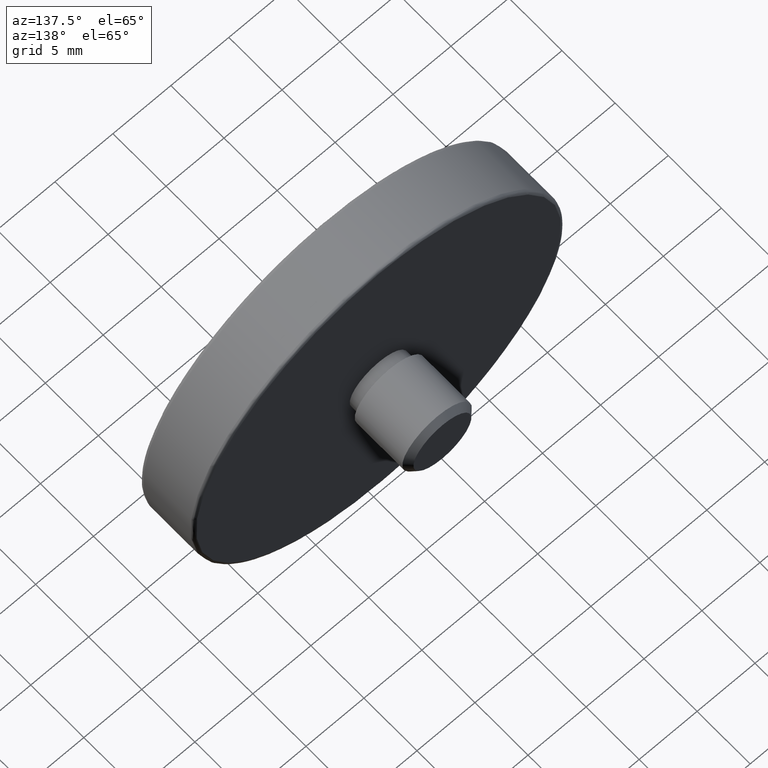
[diagram: clean part render]
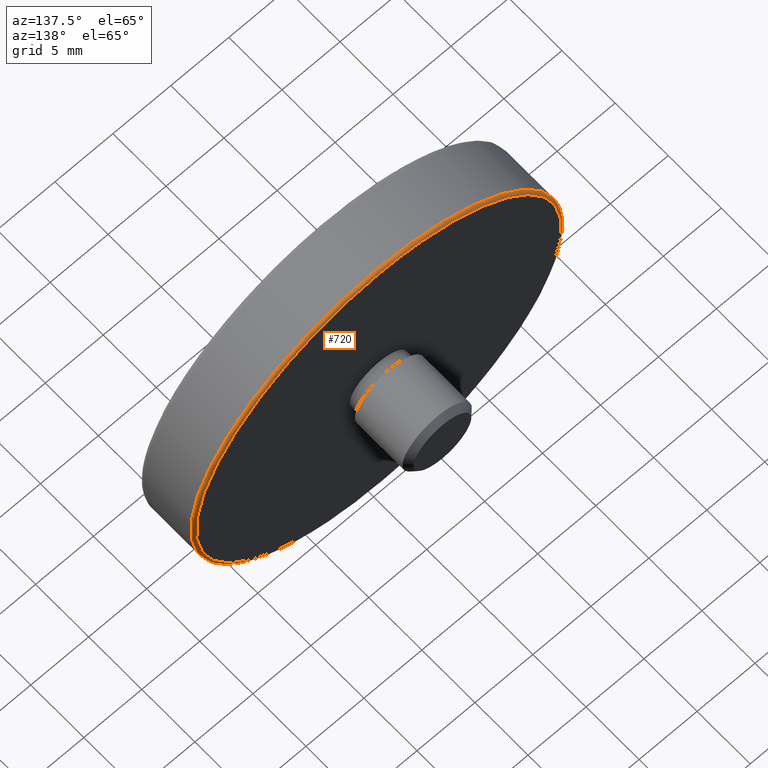
[diagram: same view with one face highlighted and labeled with its STEP entity id]
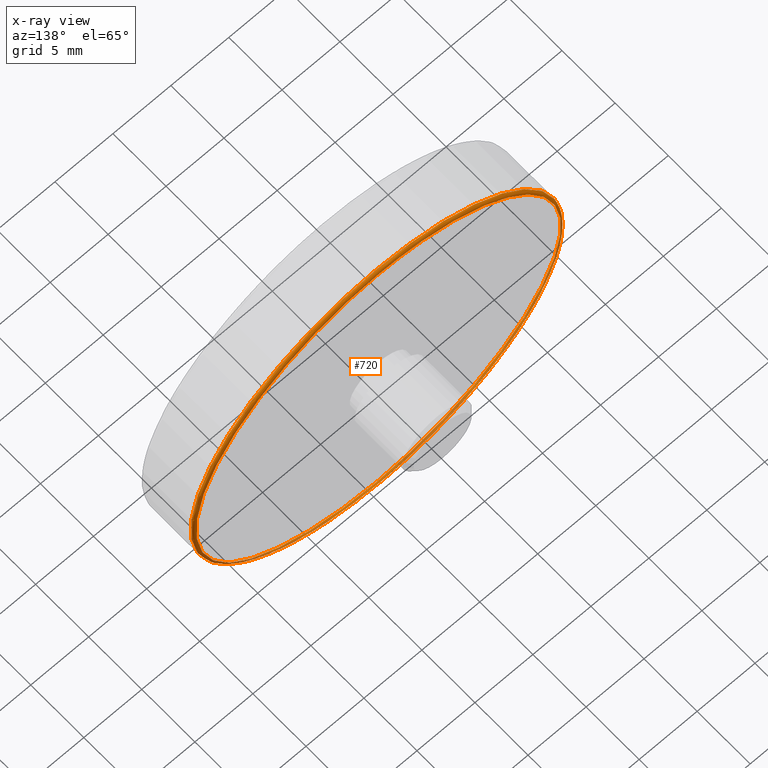
[diagram: x-ray of the same camera — body ghosted, the highlighted face saturated]
A machine part, auxiliary view. The second image highlights one B-rep face of the part: STEP entity #720.
The next image is the same camera in x-ray: the body ghosted, the highlighted face saturated — about 6% of this face is hidden behind the body in this view.
In plain terms, the highlighted face is a freeform B-spline surface patch.
Its self-contained STEP definition (entity closure, byte-faithful):
#3 = CARTESIAN_POINT ( 'NONE',  ( -16.29786958882685965, -0.1515747368784573501, 33.20085979788085240 ) ) ;
#10 = CARTESIAN_POINT ( 'NONE',  ( -15.88425312384651455, -0.1515747368784573779, 28.26087965032803950 ) ) ;
#18 = CARTESIAN_POINT ( 'NONE',  ( -0.5807087718688666023, -0.4015747368784575722, 48.00000000000000000 ) ) ;
#20 = CARTESIAN_POINT ( 'NONE',  ( 5.711497757343182435, -0.1515747368784573501, 46.44833140222376500 ) ) ;
#22 = CARTESIAN_POINT ( 'NONE',  ( -6.407872911795321258, -0.1515747368784573501, 46.63241755846218695 ) ) ;
#25 = CARTESIAN_POINT ( 'NONE',  ( 14.81345422788012023, -0.1515747368784573224, 28.63198645309650914 ) ) ;
#32 = CARTESIAN_POINT ( 'NONE',  ( 7.592518070013650977, -0.1515747368784573501, 18.52615408060659163 ) ) ;
#34 = CARTESIAN_POINT ( 'NONE',  ( -9.425465962561231592, -0.1515747368784573501, 45.03218259800112122 ) ) ;
#37 = CARTESIAN_POINT ( 'NONE',  ( 14.08687253529806149, -0.1515747368784573501, 26.26192165741480622 ) ) ;
#43 = CARTESIAN_POINT ( 'NONE',  ( 10.94053227989872390, -0.1515747368784573501, 42.75264883305106167 ) ) ;
#51 = CARTESIAN_POINT ( 'NONE',  ( 12.85166006208239864, -0.1515747368784573501, 23.77406444865714619 ) ) ;
#56 = CARTESIAN_POINT ( 'NONE',  ( 1.338122383156307160, -0.1515747368784573224, 16.33764681581298817 ) ) ;
#66 = CARTESIAN_POINT ( 'NONE',  ( 5.647213716715763887, -0.1515747368784573501, 17.53253501503873224 ) ) ;
#71 = EDGE_LOOP ( 'NONE', ( #216 ) ) ;
#72 = CARTESIAN_POINT ( 'NONE',  ( -32.58070877186887060, -0.4015747368784576277, 16.00000000000000000 ) ) ;
#75 = CARTESIAN_POINT ( 'NONE',  ( -16.33072498494765057, -0.1515747368784573501, 32.48149716482537741 ) ) ;
#82 = CARTESIAN_POINT ( 'NONE',  ( -14.69947861443043813, -0.1515747368784573501, 39.01587541199283038 ) ) ;
#91 = CARTESIAN_POINT ( 'NONE',  ( -6.169976929085363437, -0.1515747368784573779, 17.27485565886705743 ) ) ;
#98 = CARTESIAN_POINT ( 'NONE',  ( -16.08925596035417271, -0.1515747368784573501, 34.74742831985744118 ) ) ;
#104 = CARTESIAN_POINT ( 'NONE',  ( -5.540876728636449755, -0.1515747368784573501, 17.04753393455617072 ) ) ;
#120 = CARTESIAN_POINT ( 'NONE',  ( 13.09090499631559368, -0.1515747368784573501, 24.17205017078983431 ) ) ;
#121 = CARTESIAN_POINT ( 'NONE',  ( -11.33335760492642486, -0.1515747368784573224, 43.52124105176368829 ) ) ;
#124 = CARTESIAN_POINT ( 'NONE',  ( 7.926243360273033112, -0.1515747368784573501, 45.25513823212828157 ) ) ;
#127 = CARTESIAN_POINT ( 'NONE',  ( -9.254928234427744371, -0.1515747368784573779, 45.14628347448076084 ) ) ;
#133 = CARTESIAN_POINT ( 'NONE',  ( -7.233626088653621444, -0.1515747368784573501, 46.28035489036624739 ) ) ;
#135 = CARTESIAN_POINT ( 'NONE',  ( 31.21218444694459038, -0.1515747368784575722, 47.89644660940672338 ) ) ;
#136 = CARTESIAN_POINT ( 'NONE',  ( 14.97826097242841570, -0.1515747368784573501, 29.54908513145952043 ) ) ;
#141 = CARTESIAN_POINT ( 'NONE',  ( -0.5807087718688667133, -0.2551281274717313030, 48.00000000000000000 ) ) ;
#142 = CARTESIAN_POINT ( 'NONE',  ( 14.86436753226903207, -0.1515747368784573501, 35.08535364242619181 ) ) ;
#149 = CARTESIAN_POINT ( 'NONE',  ( 4.019507202574800431, -0.1515747368784573501, 16.92152340032683355 ) ) ;
#156 = B_SPLINE_CURVE_WITH_KNOTS ( 'NONE', 3,
 ( #294, #869, #681, #787, #286, #194, #399, #1255, #973, #199, #1174, #693, #206, #590, #986, #497, #891, #20, #181, #564, #960, #470, #124, #225, #317, #312, #43, #503, #519, #807, #614, #1014, #328, #1008, #1204, #824, #413, #235, #1191, #507, #432, #915, #620, #718, #706, #142, #1096, #905, #417, #214, #1188, #1001, #1086, #1209, #136, #605, #1110, #525, #596, #25, #322, #334, #513, #992, #910, #37, #423, #921, #813, #120, #51, #896, #405, #1104, #801, #1198, #700, #713, #1091, #818, #219, #601, #231, #32, #997, #257, #66, #743, #437, #747, #633, #454, #149, #842, #351, #643, #449, #532, #1027, #56, #1037, #932 ),
 .UNSPECIFIED., .F., .F.,
 ( 4, 1, 1, 1, 1, 2, 2, 1, 1, 1, 1, 2, 2, 1, 1, 1, 2, 2, 2, 1, 1, 1, 2, 2, 1, 1, 1, 1, 2, 2, 1, 1, 1, 1, 2, 2, 2, 1, 1, 1, 1, 2, 2, 1, 1, 1, 1, 2, 2, 1, 1, 1, 2, 2, 2, 1, 1, 1, 2, 2, 1, 1, 1, 1, 2, 2, 1, 1, 1, 1, 2, 2, 4 ),
 ( 0.000000000000000000, 0.03125000000000648787, 0.04687500000000970057, 0.05468750000001134509, 0.05859375000001212919, 0.06054687500001255246, 0.06250000000001296185, 0.09375000000001895706, 0.1093750000000219130, 0.1171875000000233286, 0.1210937500000240641, 0.1230468750000243694, 0.1250000000000246747, 0.1562500000000294487, 0.1718750000000318634, 0.1796875000000329736, 0.1835937500000335287, 0.1875000000000340838, 0.2500000000000414113, 0.2812500000000449640, 0.2968750000000465183, 0.3046875000000474065, 0.3085937500000477396, 0.3125000000000481282, 0.3437500000000509592, 0.3593750000000523470, 0.3671875000000532352, 0.3710937500000537348, 0.3730468750000537903, 0.3750000000000538458, 0.4062500000000502931, 0.4218750000000487388, 0.4296875000000477396, 0.4335937500000472400, 0.4355468750000471845, 0.4375000000000471290, 0.5000000000000426326, 0.5312500000000403011, 0.5468750000000393019, 0.5546875000000386358, 0.5585937500000383027, 0.5605468750000380806, 0.5625000000000379696, 0.5937500000000349720, 0.6093750000000336398, 0.6171875000000328626, 0.6210937500000325295, 0.6230468750000324185, 0.6250000000000323075, 0.6562500000000297540, 0.6718750000000284217, 0.6796875000000278666, 0.6835937500000275335, 0.6875000000000273115, 0.7500000000000213163, 0.7812500000000184297, 0.7968750000000168754, 0.8046875000000162093, 0.8085937500000158762, 0.8125000000000155431, 0.8437500000000129896, 0.8593750000000117684, 0.8671875000000112133, 0.8710937500000108802, 0.8730468750000107692, 0.8750000000000105471, 0.9062500000000076605, 0.9218750000000061062, 0.9296875000000054401, 0.9335937500000051070, 0.9355468750000048850, 0.9375000000000047740, 1.000000000000000000 ),
 .UNSPECIFIED. ) ;
#177 = CARTESIAN_POINT ( 'NONE',  ( -15.30585311300143658, -0.1515747368784573501, 37.58926815722257686 ) ) ;
#181 = CARTESIAN_POINT ( 'NONE',  ( 6.435166640079661882, -0.1515747368784573501, 46.11876984258670831 ) ) ;
#184 = CARTESIAN_POINT ( 'NONE',  ( -3.387404014291587551, -0.1515747368784573501, 16.50207018805590309 ) ) ;
#191 = CARTESIAN_POINT ( 'NONE',  ( -15.79983763065334657, -0.1515747368784573779, 36.11103185049523745 ) ) ;
#194 = CARTESIAN_POINT ( 'NONE',  ( 2.077848755630798294, -0.1515747368784573501, 47.52420673816928343 ) ) ;
#196 = CARTESIAN_POINT ( 'NONE',  ( -6.259294680629857943, -0.1515747368784573501, 17.30928195014747573 ) ) ;
#199 = CARTESIAN_POINT ( 'NONE',  ( 2.787304775032338089, -0.1515747368784573501, 47.39416299974892155 ) ) ;
#203 = CARTESIAN_POINT ( 'NONE',  ( -6.808631260446168731, -0.1515747368784573501, 46.46746498496457178 ) ) ;
#206 = CARTESIAN_POINT ( 'NONE',  ( 4.799597592749263342, -0.1515747368784573501, 46.80352059488469507 ) ) ;
#207 = CIRCLE ( 'NONE', #878, 16.00000000000000000 ) ;
#214 = CARTESIAN_POINT ( 'NONE',  ( 15.08161196238072854, -0.1515747368784573501, 33.91900647747993247 ) ) ;
#216 = ORIENTED_EDGE ( 'NONE', *, *, #329, .T. ) ;
#219 = CARTESIAN_POINT ( 'NONE',  ( 8.264048418824959441, -0.1515747368784573501, 18.96781740200073685 ) ) ;
#221 = CARTESIAN_POINT ( 'NONE',  ( -3.509403794939695231, -0.1515747368784573501, 47.47534259242056720 ) ) ;
#223 = CARTESIAN_POINT ( 'NONE',  ( -32.08070877186887060, -0.1515747368784575722, 16.25000000000000355 ) ) ;
#225 = CARTESIAN_POINT ( 'NONE',  ( 7.980982636514255546, -0.1515747368784573501, 45.21985185055384449 ) ) ;
#227 = CARTESIAN_POINT ( 'NONE',  ( -8.067307790757471508, -0.1515747368784573501, 45.87490668768065660 ) ) ;
#231 = CARTESIAN_POINT ( 'NONE',  ( 8.093510690688813014, -0.1515747368784573501, 18.85371652551869914 ) ) ;
#234 = CARTESIAN_POINT ( 'NONE',  ( -0.5807087718688667133, -0.2551281274717313030, 16.00000000000000000 ) ) ;
#235 = CARTESIAN_POINT ( 'NONE',  ( 13.97640775870714513, -0.1515747368784573501, 38.01338658018740801 ) ) ;
#244 = CARTESIAN_POINT ( 'NONE',  ( -0.5807087718688666023, -0.4015747368784575722, 16.00000000000000000 ) ) ;
#257 = CARTESIAN_POINT ( 'NONE',  ( 6.072208544928450635, -0.1515747368784573501, 17.71964510963943695 ) ) ;
#269 = CARTESIAN_POINT ( 'NONE',  ( -16.06229141250205217, -0.1515747368784573501, 29.10449093707055823 ) ) ;
#274 = CARTESIAN_POINT ( 'NONE',  ( -13.22361034289799520, -0.1515747368784573779, 22.60039558309022922 ) ) ;
#281 = CARTESIAN_POINT ( 'NONE',  ( -16.24302950612161212, -0.1515747368784573501, 30.08099352252978420 ) ) ;
#286 = CARTESIAN_POINT ( 'NONE',  ( 1.870273188304122369, -0.1515747368784573501, 47.55895733115763591 ) ) ;
#290 = CARTESIAN_POINT ( 'NONE',  ( -15.27142682172116572, -0.1515747368784573779, 37.67858590876457470 ) ) ;
#294 = CARTESIAN_POINT ( 'NONE',  ( -0.5807087718688666023, -0.1515747368784573501, 47.75000000000000000 ) ) ;
#297 = CARTESIAN_POINT ( 'NONE',  ( -16.33067634571131777, -0.1515747368784573501, 31.03700567034920610 ) ) ;
#302 = CARTESIAN_POINT ( 'NONE',  ( -13.80056062242290515, -0.1515747368784573779, 40.56169140838325404 ) ) ;
#304 = CARTESIAN_POINT ( 'NONE',  ( 31.41929122813112940, -0.4015747368784576277, 16.00000000000000000 ) ) ;
#312 = CARTESIAN_POINT ( 'NONE',  ( 9.787604535660326732, -0.1515747368784573501, 43.90549774496227542 ) ) ;
#316 = CARTESIAN_POINT ( 'NONE',  ( -32.37360199068232447, -0.1515747368784575722, 47.89644660940672338 ) ) ;
#317 = CARTESIAN_POINT ( 'NONE',  ( 8.947640162873140568, -0.1515747368784573779, 44.58791851993244393 ) ) ;
#319 = CARTESIAN_POINT ( 'NONE',  ( -10.73034810346947410, -0.1515747368784573501, 44.06519142507109166 ) ) ;
#322 = CARTESIAN_POINT ( 'NONE',  ( 14.63842008691759489, -0.1515747368784573501, 27.88896814952379444 ) ) ;
#324 = CARTESIAN_POINT ( 'NONE',  ( -9.312779566459157721, -0.1515747368784573501, 45.10793897326630031 ) ) ;
#326 = ORIENTED_EDGE ( 'NONE', *, *, #478, .F. ) ;
#327 = CARTESIAN_POINT ( 'NONE',  ( 31.41929122813113651, -0.2551281274717313585, 48.00000000000000000 ) ) ;
#328 = CARTESIAN_POINT ( 'NONE',  ( 12.56557470261239473, -0.1515747368784573501, 40.67421946255804954 ) ) ;
#329 = EDGE_CURVE ( 'NONE', #1047, #1047, #207, .T. ) ;
#334 = CARTESIAN_POINT ( 'NONE',  ( 14.37175729357525000, -0.1515747368784573779, 27.03983204322719303 ) ) ;
#351 = CARTESIAN_POINT ( 'NONE',  ( 2.723323771902244506, -0.1515747368784573779, 16.59950397876811934 ) ) ;
#360 = CARTESIAN_POINT ( 'NONE',  ( -15.04817375683896152, -0.1515747368784573779, 25.77207751143215830 ) ) ;
#370 = CARTESIAN_POINT ( 'NONE',  ( -16.20199879080944427, -0.1515747368784573779, 34.03507075329260090 ) ) ;
#375 = CARTESIAN_POINT ( 'NONE',  ( -10.94902207939079020, -0.1515747368784573501, 20.09450225503043086 ) ) ;
#381 = CARTESIAN_POINT ( 'NONE',  ( -15.21312633033104156, -0.1515747368784574056, 26.17283586007314256 ) ) ;
#389 = CARTESIAN_POINT ( 'NONE',  ( -6.318787114453574993, -0.1515747368784573779, 17.33241869283310166 ) ) ;
#396 = CARTESIAN_POINT ( 'NONE',  ( -6.594095352053567005, -0.1515747368784573779, 46.55711653057763755 ) ) ;
#399 = CARTESIAN_POINT ( 'NONE',  ( 2.166740599698818492, -0.1515747368784573501, 47.50854329354646666 ) ) ;
#405 = CARTESIAN_POINT ( 'NONE',  ( 12.67442946025821549, -0.1515747368784573501, 23.49304786785566890 ) ) ;
#413 = CARTESIAN_POINT ( 'NONE',  ( 13.88675621309268315, -0.1515747368784573501, 38.22792248858236519 ) ) ;
#417 = CARTESIAN_POINT ( 'NONE',  ( 14.90087386876441222, -0.1515747368784573501, 34.89550906292913623 ) ) ;
#423 = CARTESIAN_POINT ( 'NONE',  ( 14.07569661608407507, -0.1515747368784573779, 26.23342800275192133 ) ) ;
#432 = CARTESIAN_POINT ( 'NONE',  ( 14.05170878659341582, -0.1515747368784573779, 37.82716413992604743 ) ) ;
#437 = CARTESIAN_POINT ( 'NONE',  ( 5.340297027373680727, -0.1515747368784573779, 17.40529784309341466 ) ) ;
#449 = CARTESIAN_POINT ( 'NONE',  ( 2.410682127469982561, -0.1515747368784573501, 16.53665262141501913 ) ) ;
#454 = CARTESIAN_POINT ( 'NONE',  ( 4.742023474506457781, -0.1515747368784573501, 17.16786332593163067 ) ) ;
#457 = CARTESIAN_POINT ( 'NONE',  ( -15.20028213196471434, -0.1515747368784574334, 26.14067845921419320 ) ) ;
#465 = CARTESIAN_POINT ( 'NONE',  ( -14.25232254004105314, -0.1515747368784573501, 39.82794982923019944 ) ) ;
#470 = CARTESIAN_POINT ( 'NONE',  ( 7.814066770421368879, -0.1515747368784573501, 45.32647809848867837 ) ) ;
#473 = CARTESIAN_POINT ( 'NONE',  ( -9.142400180250556119, -0.1515747368784573501, 18.78014814944473088 ) ) ;
#478 = EDGE_CURVE ( 'NONE', #1051, #1017, #156, .T. ) ;
#480 = CARTESIAN_POINT ( 'NONE',  ( -15.53317483731150261, -0.1515747368784573779, 36.96016795678708888 ) ) ;
#486 = CARTESIAN_POINT ( 'NONE',  ( -3.948722318768390860, -0.1515747368784573501, 16.60583700025124188 ) ) ;
#497 = CARTESIAN_POINT ( 'NONE',  ( 5.157369570716050511, -0.1515747368784574056, 46.66758130716693387 ) ) ;
#500 = CARTESIAN_POINT ( 'NONE',  ( -3.666062414292339255, -0.1515747368784573501, 47.44507630413845334 ) ) ;
#502 = CARTESIAN_POINT ( 'NONE',  ( -0.5807087718688667133, -0.1515747368784575444, 16.10355339059327306 ) ) ;
#503 = CARTESIAN_POINT ( 'NONE',  ( 11.48448265320902983, -0.1515747368784573779, 42.14963933158922060 ) ) ;
#507 = CARTESIAN_POINT ( 'NONE',  ( 14.03886458822561423, -0.1515747368784574334, 37.85932154078817291 ) ) ;
#510 = CARTESIAN_POINT ( 'NONE',  ( -4.319829121549474849, -0.1515747368784573501, 47.30354435197713059 ) ) ;
#513 = CARTESIAN_POINT ( 'NONE',  ( 14.22281182301589553, -0.1515747368784573501, 26.61969363538011635 ) ) ;
#518 = CARTESIAN_POINT ( 'NONE',  ( -0.5807087718688667133, -0.2551281274717313030, 48.00000000000000000 ) ) ;
#519 = CARTESIAN_POINT ( 'NONE',  ( 12.06219279915548448, -0.1515747368784573224, 41.39960441691453497 ) ) ;
#521 = CARTESIAN_POINT ( 'NONE',  ( -0.5807087718688666023, -0.1515747368784573501, 47.75000000000000000 ) ) ;
#525 = CARTESIAN_POINT ( 'NONE',  ( 14.91722303504411506, -0.1515747368784573501, 29.19331554016136465 ) ) ;
#532 = CARTESIAN_POINT ( 'NONE',  ( 2.347986251202823560, -0.1515747368784573501, 16.52465740757973123 ) ) ;
#554 = CARTESIAN_POINT ( 'NONE',  ( -16.13967851616494897, -0.1515747368784573501, 34.45091486854357754 ) ) ;
#560 = CARTESIAN_POINT ( 'NONE',  ( -15.24829007903565525, -0.1515747368784573501, 37.73807834258654026 ) ) ;
#564 = CARTESIAN_POINT ( 'NONE',  ( 7.247241057328100311, -0.1515747368784573779, 45.67161376819102969 ) ) ;
#567 = CARTESIAN_POINT ( 'NONE',  ( -8.975484314164495103, -0.1515747368784573501, 18.67352190151307312 ) ) ;
#575 = CARTESIAN_POINT ( 'NONE',  ( -7.596584183837888915, -0.1515747368784573501, 17.88123015741993527 ) ) ;
#580 = CARTESIAN_POINT ( 'NONE',  ( -15.65918537154664314, -0.1515747368784573501, 27.39978402558008597 ) ) ;
#590 = CARTESIAN_POINT ( 'NONE',  ( 5.008559385348318571, -0.1515747368784573501, 46.72514434113299586 ) ) ;
#593 = CARTESIAN_POINT ( 'NONE',  ( -9.593664774042117926, -0.1515747368784573501, 44.91753198826571492 ) ) ;
#595 = CARTESIAN_POINT ( 'NONE',  ( 31.21218444694459038, -0.1515747368784575722, 16.10355339059326951 ) ) ;
#596 = CARTESIAN_POINT ( 'NONE',  ( 14.91215681524294112, -0.1515747368784573779, 29.16546289147199289 ) ) ;
#601 = CARTESIAN_POINT ( 'NONE',  ( 8.151362022722192791, -0.1515747368784573501, 18.89206102673468735 ) ) ;
#602 = CARTESIAN_POINT ( 'NONE',  ( -0.5807087718688666023, -0.1515747368784573501, 47.75000000000000000 ) ) ;
#605 = CARTESIAN_POINT ( 'NONE',  ( 14.94350461619665893, -0.1515747368784573501, 29.34147841444631410 ) ) ;
#610 = CARTESIAN_POINT ( 'NONE',  ( -2.499539926884261298, -0.1515747368784573501, 47.66235318418701894 ) ) ;
#612 = CARTESIAN_POINT ( 'NONE',  ( -0.5807087718688666023, -0.1515747368784575722, 47.75000000000000000 ) ) ;
#614 = CARTESIAN_POINT ( 'NONE',  ( 12.45147382613405895, -0.1515747368784573779, 40.84475719068938560 ) ) ;
#619 = CARTESIAN_POINT ( 'NONE',  ( -32.58070877186886349, -0.2551281274717313585, 16.00000000000000000 ) ) ;
#620 = CARTESIAN_POINT ( 'NONE',  ( 14.49776782780587858, -0.1515747368784573501, 36.60021597444306707 ) ) ;
#633 = CARTESIAN_POINT ( 'NONE',  ( 5.246455368057143964, -0.1515747368784573501, 17.36758244153766384 ) ) ;
#643 = CARTESIAN_POINT ( 'NONE',  ( 2.504644870557477088, -0.1515747368784573501, 16.55492369586246326 ) ) ;
#651 = DIRECTION ( 'NONE',  ( 0.000000000000000000, 1.000000000000000000, 0.000000000000000000 ) ) ;
#655 = CARTESIAN_POINT ( 'NONE',  ( -9.087660904013601382, -0.1515747368784573224, 18.74486176787261726 ) ) ;
#658 = DIRECTION ( 'NONE',  ( 0.000000000000000000, 0.000000000000000000, 1.000000000000000000 ) ) ;
#661 = CARTESIAN_POINT ( 'NONE',  ( -13.68864774513697924, -0.1515747368784574056, 23.26792920541217669 ) ) ;
#668 = CARTESIAN_POINT ( 'NONE',  ( -16.07357435898074272, -0.1515747368784573501, 34.83453710852733565 ) ) ;
#678 = CARTESIAN_POINT ( 'NONE',  ( -15.38422936675275920, -0.1515747368784574056, 37.38030636462823253 ) ) ;
#681 = CARTESIAN_POINT ( 'NONE',  ( 0.6203043783077877293, -0.1515747368784573779, 47.71713244407013832 ) ) ;
#684 = CARTESIAN_POINT ( 'NONE',  ( -4.691740622338104849, -0.1515747368784573501, 16.78087114121393597 ) ) ;
#689 = CARTESIAN_POINT ( 'NONE',  ( -12.48620651681813953, -0.1515747368784573501, 42.36831330753695823 ) ) ;
#693 = CARTESIAN_POINT ( 'NONE',  ( 4.379459184900920121, -0.1515747368784573501, 46.95246606544402113 ) ) ;
#700 = CARTESIAN_POINT ( 'NONE',  ( 10.17194006119185801, -0.1515747368784573224, 20.47875894824034049 ) ) ;
#702 = CARTESIAN_POINT ( 'NONE',  ( -6.501714571109117990, -0.1515747368784573501, 46.59470215690762984 ) ) ;
#704 = CARTESIAN_POINT ( 'NONE',  ( -0.5807087718688667133, -0.1515747368784575444, 47.89644660940672338 ) ) ;
#706 = CARTESIAN_POINT ( 'NONE',  ( 14.81978724936370817, -0.1515747368784573501, 35.30403254377083044 ) ) ;
#713 = CARTESIAN_POINT ( 'NONE',  ( 9.568930559737292896, -0.1515747368784573501, 19.93480857493597824 ) ) ;
#715 = CARTESIAN_POINT ( 'NONE',  ( -3.572099671206035332, -0.1515747368784573501, 47.46334737858552444 ) ) ;
#717 = CARTESIAN_POINT ( 'NONE',  ( -0.5807087718688666023, -0.1515747368784575722, 47.75000000000000000 ) ) ;
#718 = CARTESIAN_POINT ( 'NONE',  ( 14.72283558010650140, -0.1515747368784573501, 35.73912034968935814 ) ) ;
#720 = ADVANCED_FACE ( 'NONE', ( #817, #1201 ), #1028, .T. ) ;
#743 = CARTESIAN_POINT ( 'NONE',  ( 5.432677808319753332, -0.1515747368784573501, 17.44288346942414591 ) ) ;
#747 = CARTESIAN_POINT ( 'NONE',  ( 5.278612768919640708, -0.1515747368784573501, 17.38042663990557202 ) ) ;
#751 = CARTESIAN_POINT ( 'NONE',  ( -10.10905770663369552, -0.1515747368784573501, 19.41208148009035384 ) ) ;
#761 = CARTESIAN_POINT ( 'NONE',  ( -6.347280769116847132, -0.1515747368784573779, 17.34359461204713782 ) ) ;
#769 = CARTESIAN_POINT ( 'NONE',  ( -15.17541092877822528, -0.1515747368784573224, 26.07899420076270403 ) ) ;
#775 = CARTESIAN_POINT ( 'NONE',  ( -12.10194982364009419, -0.1515747368784573501, 21.24735116695259762 ) ) ;
#783 = CARTESIAN_POINT ( 'NONE',  ( -13.49824076014034091, -0.1515747368784573779, 22.98704399783452601 ) ) ;
#784 = EDGE_LOOP ( 'NONE', ( #1212, #326 ) ) ;
#787 = CARTESIAN_POINT ( 'NONE',  ( 1.454476995645590298, -0.1515747368784573501, 47.62126873927468296 ) ) ;
#789 = CARTESIAN_POINT ( 'NONE',  ( -5.903441018237195692, -0.1515747368784573501, 46.83213667407063241 ) ) ;
#791 = CARTESIAN_POINT ( 'NONE',  ( 30.91929122813113651, -0.1515747368784575722, 16.25000000000000355 ) ) ;
#796 = CARTESIAN_POINT ( 'NONE',  ( -8.753935613741818500, -0.1515747368784573224, 45.47384591939772491 ) ) ;
#801 = CARTESIAN_POINT ( 'NONE',  ( 12.00720974806096208, -0.1515747368784573501, 22.47165106525885747 ) ) ;
#804 = CARTESIAN_POINT ( 'NONE',  ( -3.884741315634630876, -0.1515747368784573779, 47.40049602123361439 ) ) ;
#806 = CARTESIAN_POINT ( 'NONE',  ( -0.5807087718688667133, -0.1515747368784575444, 47.89644660940672338 ) ) ;
#807 = CARTESIAN_POINT ( 'NONE',  ( 12.33682321639981971, -0.1515747368784573501, 41.01295600216825932 ) ) ;
#813 = CARTESIAN_POINT ( 'NONE',  ( 13.53806107070906073, -0.1515747368784573501, 24.98412458803387182 ) ) ;
#817 = FACE_OUTER_BOUND ( 'NONE', #71, .T. ) ;
#818 = CARTESIAN_POINT ( 'NONE',  ( 8.432247230306812114, -0.1515747368784573779, 19.08246801173738305 ) ) ;
#823 = CARTESIAN_POINT ( 'NONE',  ( -1.781721922049616103, -0.1515747368784573501, 16.28286755592986879 ) ) ;
#824 = CARTESIAN_POINT ( 'NONE',  ( 13.69964611849217739, -0.1515747368784573779, 38.65291731679344167 ) ) ;
#829 = CARTESIAN_POINT ( 'NONE',  ( -3.239266299369492064, -0.1515747368784573779, 16.47579326183071657 ) ) ;
#842 = CARTESIAN_POINT ( 'NONE',  ( 3.158411577820911198, -0.1515747368784573501, 16.69645564802581461 ) ) ;
#846 = CARTESIAN_POINT ( 'NONE',  ( -1.062293566579916471, -0.1515747368784573501, 16.25000000000000355 ) ) ;
#851 = CARTESIAN_POINT ( 'NONE',  ( -16.07864057878164843, -0.1515747368784573501, 34.80668445983913983 ) ) ;
#859 = CARTESIAN_POINT ( 'NONE',  ( -15.02904017407828263, -0.1515747368784573779, 38.29220652923738299 ) ) ;
#864 = EDGE_CURVE ( 'NONE', #1017, #1051, #1005, .T. ) ;
#867 = CARTESIAN_POINT ( 'NONE',  ( -14.05455469127380752, -0.1515747368784573501, 23.82677315813939956 ) ) ;
#869 = CARTESIAN_POINT ( 'NONE',  ( -0.09912397716015530769, -0.1515747368784573501, 47.75000000000000000 ) ) ;
#871 = CARTESIAN_POINT ( 'NONE',  ( -15.41284544593987604, -0.1515747368784573501, 26.67726775363826164 ) ) ;
#877 = CARTESIAN_POINT ( 'NONE',  ( -15.13782530244945157, -0.1515747368784573501, 25.98661341982036532 ) ) ;
#878 = AXIS2_PLACEMENT_3D ( 'NONE', #1033, #651, #658 ) ;
#891 = CARTESIAN_POINT ( 'NONE',  ( 5.185863225379845787, -0.1515747368784573501, 46.65640538795263836 ) ) ;
#895 = CARTESIAN_POINT ( 'NONE',  ( -32.37360199068232447, -0.1515747368784575722, 16.10355339059326951 ) ) ;
#896 = CARTESIAN_POINT ( 'NONE',  ( 12.74576932661750561, -0.1515747368784573779, 23.60522445770513045 ) ) ;
#899 = CARTESIAN_POINT ( 'NONE',  ( -14.01307760581297757, -0.1515747368784574056, 40.22593555135454579 ) ) ;
#902 = CARTESIAN_POINT ( 'NONE',  ( -0.5807087718688666023, -0.1515747368784575722, 16.25000000000000000 ) ) ;
#905 = CARTESIAN_POINT ( 'NONE',  ( 14.89463382055151541, -0.1515747368784573501, 34.92869502307165419 ) ) ;
#910 = CARTESIAN_POINT ( 'NONE',  ( 14.11000927798371052, -0.1515747368784573779, 26.32141409123806142 ) ) ;
#915 = CARTESIAN_POINT ( 'NONE',  ( 14.25142790220041000, -0.1515747368784573501, 37.32273224637499709 ) ) ;
#921 = CARTESIAN_POINT ( 'NONE',  ( 13.86762263034989040, -0.1515747368784573501, 25.70779347077789367 ) ) ;
#932 = CARTESIAN_POINT ( 'NONE',  ( -0.5807087718688647149, -0.1515747368784573501, 16.25000000000000000 ) ) ;
#951 = CARTESIAN_POINT ( 'NONE',  ( -3.328158143437115246, -0.1515747368784573779, 16.49145670645354755 ) ) ;
#957 = CARTESIAN_POINT ( 'NONE',  ( -6.872915301092630713, -0.1515747368784573501, 17.55166859778002575 ) ) ;
#960 = CARTESIAN_POINT ( 'NONE',  ( 7.645226779466291589, -0.1515747368784573501, 45.43236883395510972 ) ) ;
#964 = CARTESIAN_POINT ( 'NONE',  ( -16.02578507600749447, -0.1515747368784573501, 28.91464635757923674 ) ) ;
#970 = CARTESIAN_POINT ( 'NONE',  ( -15.98120479310277275, -0.1515747368784573501, 28.69596745623927703 ) ) ;
#973 = CARTESIAN_POINT ( 'NONE',  ( 2.253828336659292386, -0.1515747368784573501, 47.49286558711182948 ) ) ;
#977 = CARTESIAN_POINT ( 'NONE',  ( -5.961015136485708688, -0.1515747368784573501, 17.19647940511541151 ) ) ;
#983 = CARTESIAN_POINT ( 'NONE',  ( -6.440030312656204181, -0.1515747368784573501, 46.61957336009495378 ) ) ;
#986 = CARTESIAN_POINT ( 'NONE',  ( 5.097877136892531524, -0.1515747368784573779, 46.69071804985256335 ) ) ;
#988 = CARTESIAN_POINT ( 'NONE',  ( -1.544233901720514224, -0.1515747368784574056, 47.75000000000002132 ) ) ;
#992 = CARTESIAN_POINT ( 'NONE',  ( 14.14443556926416967, -0.1515747368784573501, 26.41073184278186758 ) ) ;
#996 = CARTESIAN_POINT ( 'NONE',  ( 30.91929122813113651, -0.1515747368784575722, 47.75000000000000000 ) ) ;
#997 = CARTESIAN_POINT ( 'NONE',  ( 6.905890247036487573, -0.1515747368784573779, 18.12509331232692134 ) ) ;
#1001 = CARTESIAN_POINT ( 'NONE',  ( 15.16930744121148855, -0.1515747368784573224, 31.51850283517864426 ) ) ;
#1004 = CARTESIAN_POINT ( 'NONE',  ( -13.16862729179831604, -0.1515747368784573501, 41.52834893473976052 ) ) ;
#1005 = B_SPLINE_CURVE_WITH_KNOTS ( 'NONE', 3,
 ( #1229, #846, #823, #1208, #1018, #829, #951, #184, #1165, #486, #684, #104, #977, #91, #196, #389, #761, #957, #575, #1251, #1144, #567, #655, #473, #751, #375, #775, #1151, #274, #783, #1243, #661, #1056, #867, #1076, #1236, #360, #877, #769, #457, #381, #871, #580, #10, #970, #964, #1157, #1170, #269, #281, #297, #75, #3, #370, #554, #1050, #98, #851, #668, #1063, #191, #480, #678, #177, #290, #560, #1069, #859, #82, #465, #899, #1093, #1081, #302, #1004, #689, #121, #319, #1099, #593, #34, #324, #127, #796, #227, #133, #203, #396, #702, #983, #22, #789, #1194, #510, #804, #500, #715, #221, #1177, #610, #988, #602 ),
 .UNSPECIFIED., .F., .F.,
 ( 4, 1, 1, 1, 1, 2, 2, 1, 1, 1, 1, 2, 2, 1, 1, 1, 2, 2, 2, 1, 1, 1, 2, 2, 1, 1, 1, 1, 2, 2, 1, 1, 1, 1, 2, 2, 2, 1, 1, 1, 1, 2, 2, 1, 1, 1, 1, 2, 2, 1, 1, 1, 2, 2, 2, 1, 1, 1, 2, 2, 1, 1, 1, 1, 2, 2, 1, 1, 1, 1, 2, 2, 4 ),
 ( 0.000000000000000000, 0.03125000000000296985, 0.04687500000000446171, 0.05468750000000521805, 0.05859375000000561357, 0.06054687500000583561, 0.06250000000000606459, 0.09375000000000999201, 0.1093750000000119904, 0.1171875000000129896, 0.1210937500000134753, 0.1230468750000137529, 0.1250000000000140166, 0.1562500000000177358, 0.1718750000000195954, 0.1796875000000204003, 0.1835937500000208167, 0.1875000000000212053, 0.2500000000000283662, 0.2812500000000320854, 0.2968750000000339173, 0.3046875000000348610, 0.3085937500000352496, 0.3125000000000356937, 0.3437500000000394684, 0.3593750000000411893, 0.3671875000000421330, 0.3710937500000424660, 0.3730468750000425771, 0.3750000000000426326, 0.4062500000000448530, 0.4218750000000459077, 0.4296875000000464628, 0.4335937500000465739, 0.4355468750000467959, 0.4375000000000469624, 0.5000000000000532907, 0.5312500000000562883, 0.5468750000000579536, 0.5546875000000586198, 0.5585937500000590639, 0.5605468750000591749, 0.5625000000000592859, 0.5937500000000592859, 0.6093750000000596190, 0.6171875000000596190, 0.6210937500000597300, 0.6230468750000596190, 0.6250000000000596190, 0.6562500000000558442, 0.6718750000000538458, 0.6796875000000530687, 0.6835937500000525135, 0.6875000000000519584, 0.7500000000000436318, 0.7812500000000393019, 0.7968750000000371925, 0.8046875000000361933, 0.8085937500000355271, 0.8125000000000348610, 0.8437500000000279776, 0.8593750000000246470, 0.8671875000000229816, 0.8710937500000222045, 0.8730468750000217604, 0.8750000000000214273, 0.9062500000000159872, 0.9218750000000133227, 0.9296875000000121014, 0.9335937500000113243, 0.9355468750000109912, 0.9375000000000105471, 1.000000000000000000 ),
 .UNSPECIFIED. ) ;
#1008 = CARTESIAN_POINT ( 'NONE',  ( 12.89313714752491080, -0.1515747368784573779, 40.17322684187956128 ) ) ;
#1013 = CARTESIAN_POINT ( 'NONE',  ( -32.58070877186886349, -0.2551281274717313585, 48.00000000000000000 ) ) ;
#1014 = CARTESIAN_POINT ( 'NONE',  ( 12.52723020139836230, -0.1515747368784573501, 40.73207079458870083 ) ) ;
#1017 = VERTEX_POINT ( 'NONE', #1107 ) ;
#1018 = CARTESIAN_POINT ( 'NONE',  ( -3.031690732043649916, -0.1515747368784573501, 16.44104266884236409 ) ) ;
#1025 = CARTESIAN_POINT ( 'NONE',  ( -32.58070877186887060, -0.4015747368784576277, 48.00000000000000000 ) ) ;
#1027 = CARTESIAN_POINT ( 'NONE',  ( 2.314805769886984610, -0.1515747368784573501, 16.51841837342727004 ) ) ;
#1028 =( BOUNDED_SURFACE ( )  B_SPLINE_SURFACE ( 3, 3, ( 
 ( #717, #996, #791, #902, #223, #1095, #612 ),
 ( #806, #135, #595, #502, #895, #316, #704 ),
 ( #518, #327, #1109, #234, #619, #1013, #141 ),
 ( #18, #1179, #304, #244, #72, #1025, #1213 ) ),
 .UNSPECIFIED., .F., .T., .T. ) 
 B_SPLINE_SURFACE_WITH_KNOTS ( ( 4, 4 ),
 ( 4, 3, 4 ),
 ( 0.000000000000000000, 1.000000000000000000 ),
 ( 0.000000000000000000, 0.5000000000000000000, 1.000000000000000000 ),
 .UNSPECIFIED. ) 
 GEOMETRIC_REPRESENTATION_ITEM ( )  RATIONAL_B_SPLINE_SURFACE ( (
 ( 1.000000000000000000, 0.3333333333333333148, 0.3333333333333333148, 1.000000000000000000, 0.3333333333333333148, 0.3333333333333333148, 1.000000000000000000),
 ( 0.8047378541243649375, 0.2682459513747882940, 0.2682459513747882940, 0.8047378541243649375, 0.2682459513747882940, 0.2682459513747882940, 0.8047378541243649375),
 ( 0.8047378541243649375, 0.2682459513747882940, 0.2682459513747882940, 0.8047378541243649375, 0.2682459513747882940, 0.2682459513747882940, 0.8047378541243649375),
 ( 1.000000000000000000, 0.3333333333333333148, 0.3333333333333333148, 1.000000000000000000, 0.3333333333333333148, 0.3333333333333333148, 1.000000000000000000) ) ) 
 REPRESENTATION_ITEM ( '' )  SURFACE ( )  );
#1033 = CARTESIAN_POINT ( 'NONE',  ( -0.5807087718688666023, -0.4015747368784575722, 32.00000000000000000 ) ) ;
#1037 = CARTESIAN_POINT ( 'NONE',  ( 0.3828163579925170645, -0.1515747368784573501, 16.24999999999999645 ) ) ;
#1047 = VERTEX_POINT ( 'NONE', #1149 ) ;
#1050 = CARTESIAN_POINT ( 'NONE',  ( -16.10492215993373932, -0.1515747368784573501, 34.65852158555534146 ) ) ;
#1051 = VERTEX_POINT ( 'NONE', #521 ) ;
#1056 = CARTESIAN_POINT ( 'NONE',  ( -13.72699224634873261, -0.1515747368784573779, 23.32578053743958435 ) ) ;
#1063 = CARTESIAN_POINT ( 'NONE',  ( -15.97487177161671923, -0.1515747368784573501, 35.36801354691436927 ) ) ;
#1069 = CARTESIAN_POINT ( 'NONE',  ( -15.23711415982238293, -0.1515747368784573501, 37.76657199724712655 ) ) ;
#1076 = CARTESIAN_POINT ( 'NONE',  ( -14.45561545956213756, -0.1515747368784573501, 24.51340098113301380 ) ) ;
#1081 = CARTESIAN_POINT ( 'NONE',  ( -13.83584700399369005, -0.1515747368784573501, 40.50695213214803658 ) ) ;
#1086 = CARTESIAN_POINT ( 'NONE',  ( 15.13645204509188247, -0.1515747368784573779, 30.79914020212619619 ) ) ;
#1091 = CARTESIAN_POINT ( 'NONE',  ( 8.818895645058395516, -0.1515747368784573501, 19.35709842898605260 ) ) ;
#1093 = CARTESIAN_POINT ( 'NONE',  ( -13.90718687035092316, -0.1515747368784573501, 40.39477554230189327 ) ) ;
#1095 = CARTESIAN_POINT ( 'NONE',  ( -32.08070877186887060, -0.1515747368784575722, 47.75000000000000000 ) ) ;
#1096 = CARTESIAN_POINT ( 'NONE',  ( 14.88263860671633054, -0.1515747368784573501, 34.99139089933876789 ) ) ;
#1099 = CARTESIAN_POINT ( 'NONE',  ( -9.980313188791965828, -0.1515747368784573501, 44.64290157101924450 ) ) ;
#1104 = CARTESIAN_POINT ( 'NONE',  ( 12.63914307868514797, -0.1515747368784573779, 23.43830859161684188 ) ) ;
#1107 = CARTESIAN_POINT ( 'NONE',  ( -0.5807087718688647149, -0.1515747368784573501, 16.25000000000000000 ) ) ;
#1109 = CARTESIAN_POINT ( 'NONE',  ( 31.41929122813113651, -0.2551281274717313585, 16.00000000000000000 ) ) ;
#1110 = CARTESIAN_POINT ( 'NONE',  ( 14.92783841661681876, -0.1515747368784573501, 29.25257168014352516 ) ) ;
#1144 = CARTESIAN_POINT ( 'NONE',  ( -8.806644323212985626, -0.1515747368784573501, 18.56763116604780706 ) ) ;
#1149 = CARTESIAN_POINT ( 'NONE',  ( -0.5807087718688666023, -0.4015747368784575722, 48.00000000000000000 ) ) ;
#1151 = CARTESIAN_POINT ( 'NONE',  ( -12.64590019695312684, -0.1515747368784573501, 21.85036066841714586 ) ) ;
#1157 = CARTESIAN_POINT ( 'NONE',  ( -16.04405615045448741, -0.1515747368784573779, 29.00860910066441178 ) ) ;
#1165 = CARTESIAN_POINT ( 'NONE',  ( -3.415245880397132616, -0.1515747368784573501, 16.50713441288818828 ) ) ;
#1170 = CARTESIAN_POINT ( 'NONE',  ( -16.05605136428946622, -0.1515747368784573501, 29.07130497692998716 ) ) ;
#1174 = CARTESIAN_POINT ( 'NONE',  ( 3.530323078603308851, -0.1515747368784573501, 47.21912885878632693 ) ) ;
#1177 = CARTESIAN_POINT ( 'NONE',  ( -3.476223313625022016, -0.1515747368784573779, 47.48158162657274062 ) ) ;
#1179 = CARTESIAN_POINT ( 'NONE',  ( 31.41929122813112940, -0.4015747368784576277, 48.00000000000000000 ) ) ;
#1188 = CARTESIAN_POINT ( 'NONE',  ( 15.16925880197043774, -0.1515747368784574056, 32.96299432964276122 ) ) ;
#1191 = CARTESIAN_POINT ( 'NONE',  ( 14.01399338503781777, -0.1515747368784573779, 37.92100579924183990 ) ) ;
#1194 = CARTESIAN_POINT ( 'NONE',  ( -5.180924746300290984, -0.1515747368784573501, 47.07847659967711706 ) ) ;
#1198 = CARTESIAN_POINT ( 'NONE',  ( 11.32478897307405674, -0.1515747368784573501, 21.63168669245493803 ) ) ;
#1201 = FACE_OUTER_BOUND ( 'NONE', #784, .T. ) ;
#1204 = CARTESIAN_POINT ( 'NONE',  ( 13.29419791580485821, -0.1515747368784573501, 39.48659901890017920 ) ) ;
#1208 = CARTESIAN_POINT ( 'NONE',  ( -2.615894539386395490, -0.1515747368784573501, 16.37873126072532060 ) ) ;
#1209 = CARTESIAN_POINT ( 'NONE',  ( 15.04058124707377075, -0.1515747368784573501, 29.96492924671267843 ) ) ;
#1212 = ORIENTED_EDGE ( 'NONE', *, *, #864, .F. ) ;
#1213 = CARTESIAN_POINT ( 'NONE',  ( -0.5807087718688666023, -0.4015747368784575722, 48.00000000000000000 ) ) ;
#1229 = CARTESIAN_POINT ( 'NONE',  ( -0.5807087718688647149, -0.1515747368784573501, 16.25000000000000000 ) ) ;
#1236 = CARTESIAN_POINT ( 'NONE',  ( -14.86106366224456998, -0.1515747368784573779, 25.34708268323145930 ) ) ;
#1243 = CARTESIAN_POINT ( 'NONE',  ( -13.61289136987346282, -0.1515747368784573501, 23.15524280931230905 ) ) ;
#1251 = CARTESIAN_POINT ( 'NONE',  ( -8.408658601081201667, -0.1515747368784573501, 18.32838623181394055 ) ) ;
#1255 = CARTESIAN_POINT ( 'NONE',  ( 2.225986470553564356, -0.1515747368784573501, 47.49792981194411823 ) ) ;